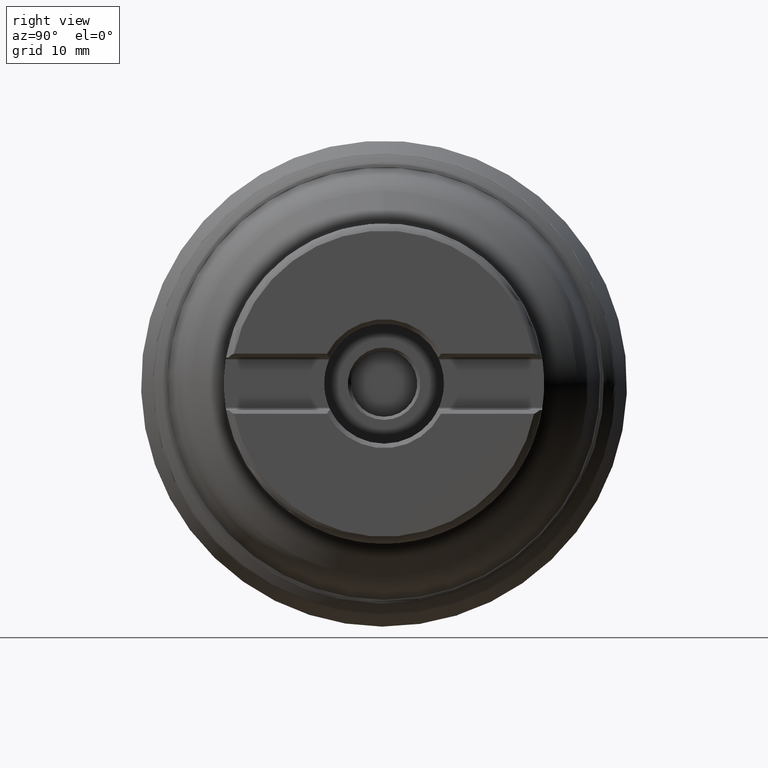
[diagram: clean part render]
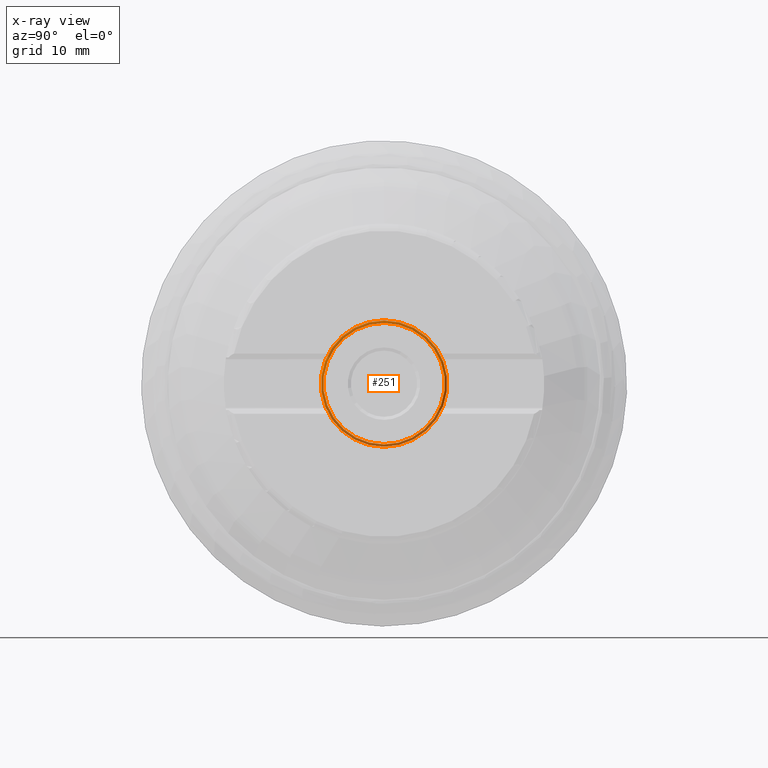
[diagram: x-ray — body ghosted, one internal face saturated and labeled with its STEP entity id]
A machine part, right view, then the same camera in x-ray: the body is ghosted and one INTERNAL B-rep face — a face not visible from any outside direction — is saturated and labeled: STEP entity #251.
In plain terms, the highlighted toroidal blend (fillet) surface has major radius 9.625 mm and minor (blend) radius 0.4 mm.
Its self-contained STEP definition (entity closure, byte-faithful):
#113=TOROIDAL_SURFACE('',#1109,9.625,0.4);
#251=ADVANCED_FACE('',(#431,#432),#113,.F.);
#431=FACE_BOUND('',#527,.T.);
#432=FACE_BOUND('',#528,.T.);
#527=EDGE_LOOP('',(#663));
#528=EDGE_LOOP('',(#664));
#663=ORIENTED_EDGE('',*,*,#949,.F.);
#664=ORIENTED_EDGE('',*,*,#950,.F.);
#856=VERTEX_POINT('',#1713);
#857=VERTEX_POINT('',#1715);
#949=EDGE_CURVE('',#856,#856,#1040,.T.);
#950=EDGE_CURVE('',#857,#857,#1041,.T.);
#1040=CIRCLE('',#1107,9.625);
#1041=CIRCLE('',#1108,10.025);
#1107=AXIS2_PLACEMENT_3D('',#1712,#1281,#1282);
#1108=AXIS2_PLACEMENT_3D('',#1714,#1283,#1284);
#1109=AXIS2_PLACEMENT_3D('',#1716,#1285,#1286);
#1281=DIRECTION('',(-1.,-1.47104550762833E-15,0.));
#1282=DIRECTION('',(0.,0.,1.));
#1283=DIRECTION('',(1.,1.47104550762833E-15,0.));
#1284=DIRECTION('',(0.,0.,1.));
#1285=DIRECTION('',(1.,1.47104550762833E-15,0.));
#1286=DIRECTION('',(0.,0.,1.));
#1712=CARTESIAN_POINT('',(24.45,-2.28747576436206E-14,0.));
#1713=CARTESIAN_POINT('',(24.45,-2.28747576436206E-14,9.625));
#1714=CARTESIAN_POINT('',(24.05,-2.34631758466719E-14,0.));
#1715=CARTESIAN_POINT('',(24.05,-2.34631758466719E-14,10.025));
#1716=CARTESIAN_POINT('',(24.05,-2.34631758466719E-14,0.));